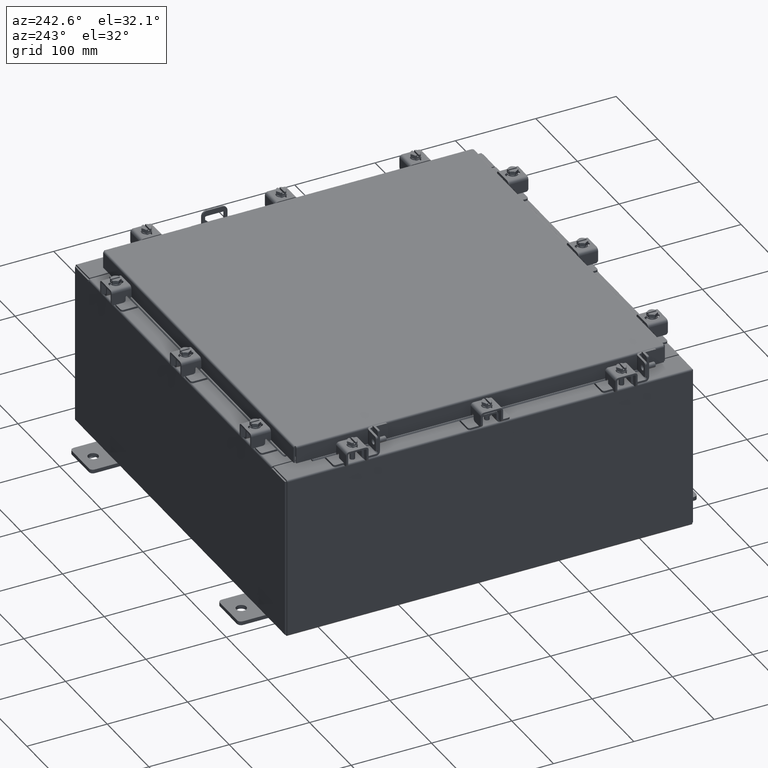
[diagram: clean part render]
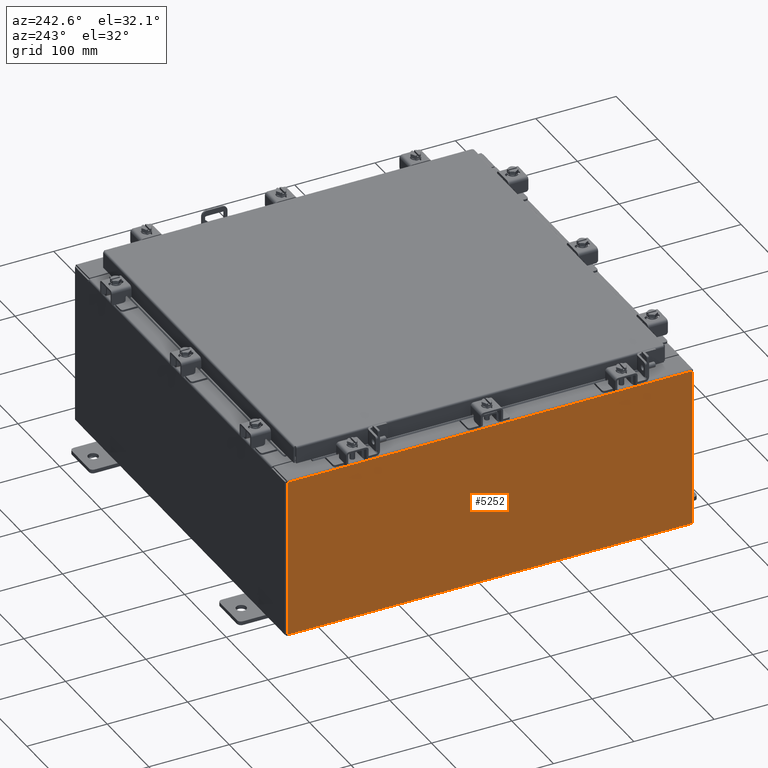
[diagram: same view with one face highlighted and labeled with its STEP entity id]
A machine part, auxiliary view. The second image highlights one B-rep face of the part: STEP entity #5252.
In plain terms, the highlighted planar face has unit normal (1, 0, 0).
Its self-contained STEP definition (entity closure, byte-faithful):
#29 = ORIENTED_EDGE ( 'NONE', *, *, #10797, .F. ) ;
#32 = LINE ( 'NONE', #5397, #18094 ) ;
#2145 = EDGE_CURVE ( 'NONE', #22564, #19263, #2692, .T. ) ;
#2248 = VERTEX_POINT ( 'NONE', #20066 ) ;
#2348 = ORIENTED_EDGE ( 'NONE', *, *, #5767, .T. ) ;
#2692 = LINE ( 'NONE', #3028, #20725 ) ;
#2881 = ORIENTED_EDGE ( 'NONE', *, *, #6645, .T. ) ;
#3028 = CARTESIAN_POINT ( 'NONE',  ( -10.00000000000000000, -9.925299999999998200, -4.158357099863696100E-014 ) ) ;
#3035 = LINE ( 'NONE', #3757, #14843 ) ;
#3757 = CARTESIAN_POINT ( 'NONE',  ( -10.00000000000000000, 9.925300000000001800, -3.063557977397026300E-014 ) ) ;
#3764 = CARTESIAN_POINT ( 'NONE',  ( -10.00000000000000000, -9.925299999999998200, 0.01299999999999984700 ) ) ;
#4199 = LINE ( 'NONE', #14985, #22234 ) ;
#4425 = ORIENTED_EDGE ( 'NONE', *, *, #2145, .T. ) ;
#5252 = ADVANCED_FACE ( 'NONE', ( #10172 ), #13023, .F. ) ;
#5397 = CARTESIAN_POINT ( 'NONE',  ( -10.00000000000002800, -9.925300000000000000, 7.837599999999999200 ) ) ;
#5767 = EDGE_CURVE ( 'NONE', #2248, #9008, #3035, .T. ) ;
#6645 = EDGE_CURVE ( 'NONE', #19263, #2248, #32, .T. ) ;
#7719 = CARTESIAN_POINT ( 'NONE',  ( -10.00000000000000000, 0.0000000000000000000, -3.610957538630361200E-014 ) ) ;
#7796 = DIRECTION ( 'NONE',  ( 3.584876173029202900E-015, 0.0000000000000000000, -1.000000000000000000 ) ) ;
#9008 = VERTEX_POINT ( 'NONE', #20745 ) ;
#9086 = EDGE_LOOP ( 'NONE', ( #2881, #2348, #29, #4425 ) ) ;
#10133 = DIRECTION ( 'NONE',  ( -3.584876173029202900E-015, -5.515194112352620500E-016, 1.000000000000000000 ) ) ;
#10172 = FACE_OUTER_BOUND ( 'NONE', #9086, .T. ) ;
#10797 = EDGE_CURVE ( 'NONE', #22564, #9008, #4199, .T. ) ;
#13023 = PLANE ( 'NONE',  #19359 ) ;
#14275 = DIRECTION ( 'NONE',  ( 3.584876173029202900E-015, 5.515194112352620500E-016, -1.000000000000000000 ) ) ;
#14843 = VECTOR ( 'NONE', #14275, 39.37007874015748100 ) ;
#14985 = CARTESIAN_POINT ( 'NONE',  ( -10.00000000000000000, 9.925300000000000000, 0.01299999999999984700 ) ) ;
#15903 = DIRECTION ( 'NONE',  ( 0.0000000000000000000, 1.000000000000000000, 0.0000000000000000000 ) ) ;
#18094 = VECTOR ( 'NONE', #15903, 39.37007874015748100 ) ;
#18288 = DIRECTION ( 'NONE',  ( 1.000000000000000000, 0.0000000000000000000, 3.584876173029202900E-015 ) ) ;
#19263 = VERTEX_POINT ( 'NONE', #22202 ) ;
#19359 = AXIS2_PLACEMENT_3D ( 'NONE', #7719, #18288, #7796 ) ;
#20066 = CARTESIAN_POINT ( 'NONE',  ( -10.00000000000002800, 9.925299999999996500, 7.837599999999999200 ) ) ;
#20725 = VECTOR ( 'NONE', #10133, 39.37007874015748100 ) ;
#20745 = CARTESIAN_POINT ( 'NONE',  ( -10.00000000000000000, 9.925300000000001800, 0.01299999999999983600 ) ) ;
#21977 = DIRECTION ( 'NONE',  ( -0.0000000000000000000, 1.000000000000000000, -0.0000000000000000000 ) ) ;
#22202 = CARTESIAN_POINT ( 'NONE',  ( -10.00000000000002800, -9.925300000000000000, 7.837599999999999200 ) ) ;
#22234 = VECTOR ( 'NONE', #21977, 39.37007874015748100 ) ;
#22564 = VERTEX_POINT ( 'NONE', #3764 ) ;